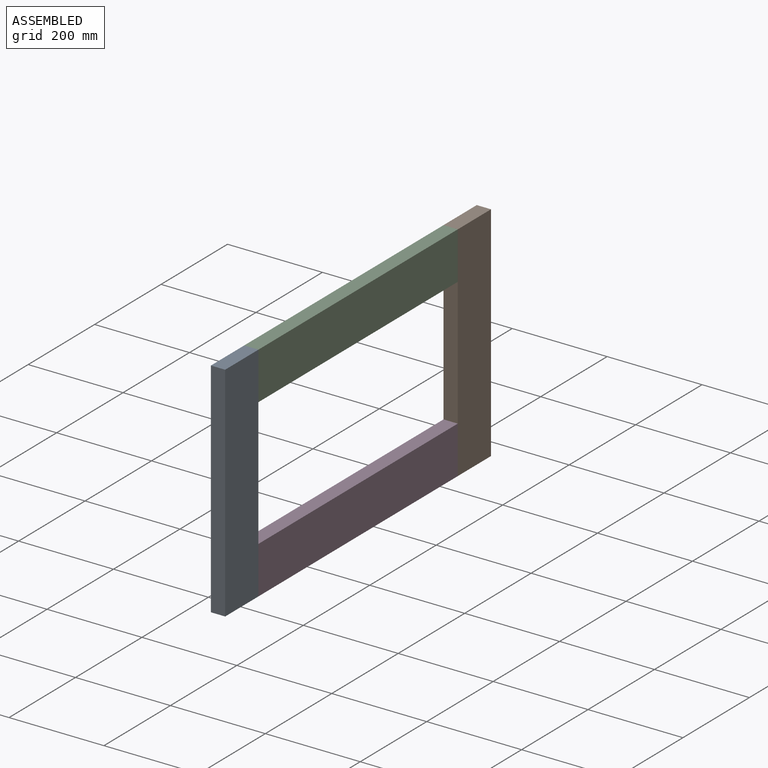
[diagram: assembled view]
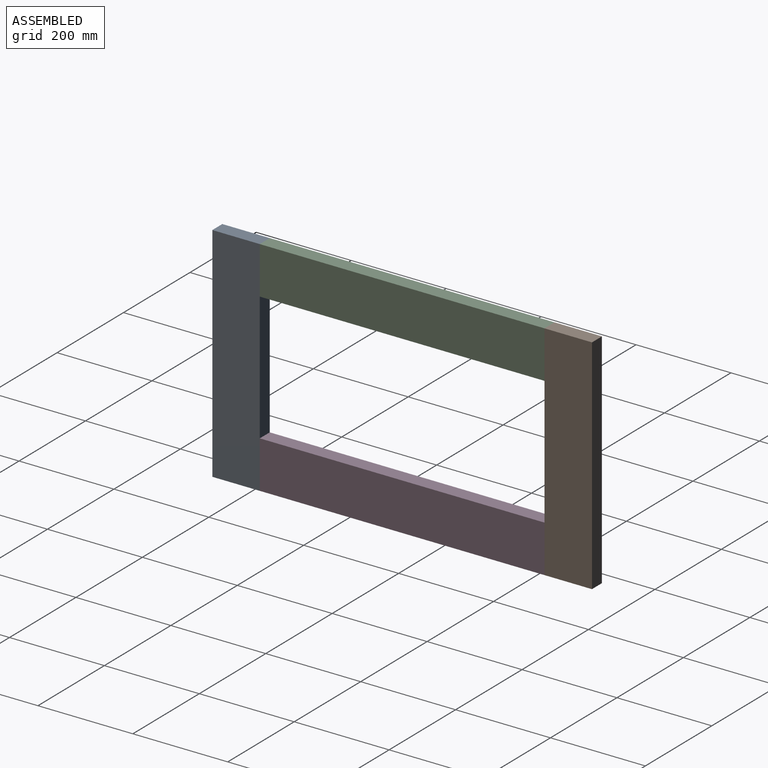
[diagram: assembled view, second angle]
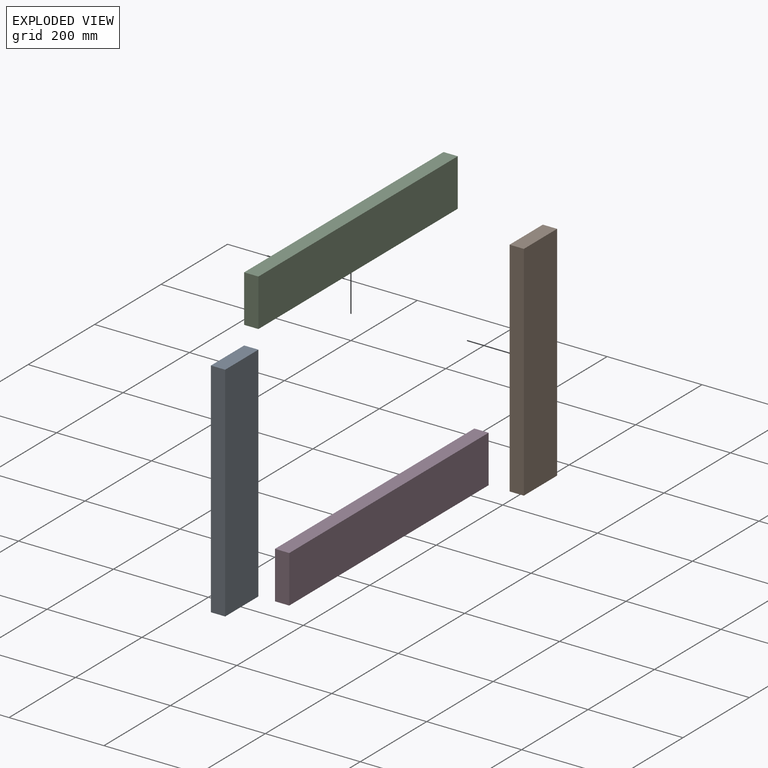
[diagram: exploded view]
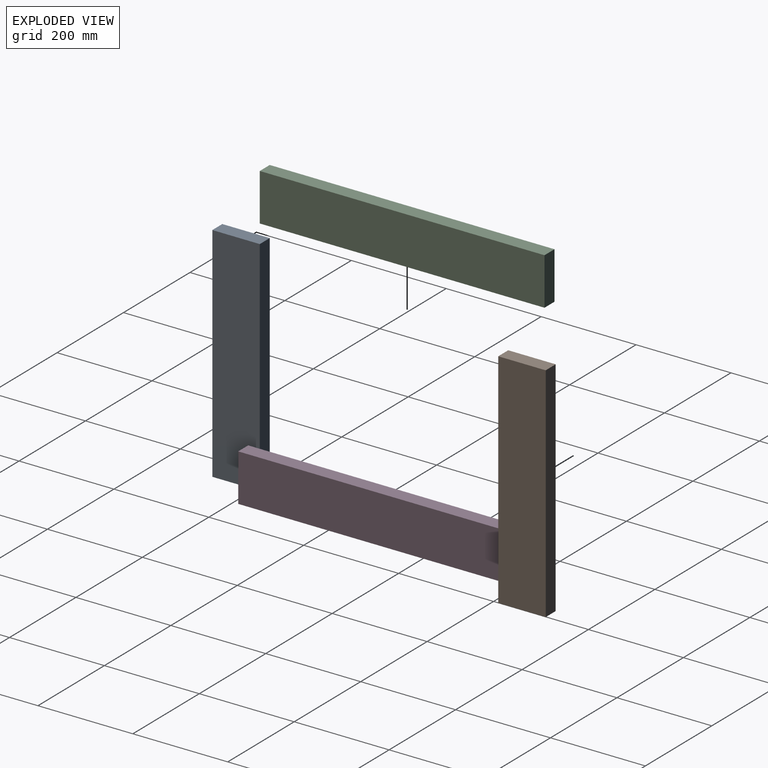
[diagram: exploded view, second angle]
ASSEMBLY  parts=4 mates=9
PART A: 6 faces, bbox 30x100x470 mm
  f0: plane 100x30mm, normal (0,0,1), area 3000mm2, adj f1,f3,f4,f5
  f1: plane 470x30mm, normal (0,-1,0), area 14100mm2, adj f0,f2,f4,f5
  f2: plane 100x30mm, normal (0,0,-1), area 3000mm2, adj f1,f3,f4,f5
  f3: plane 470x30mm, normal (0,1,0), area 14100mm2, adj f0,f2,f4,f5
  f4: plane 470x100mm, normal (1,0,0), area 47000mm2, adj f0,f1,f2,f3
  f5: plane 470x100mm, normal (-1,0,0), area 47000mm2, adj f0,f1,f2,f3
PART B: same geometry as A
PART C: 6 faces, bbox 30x600x100 mm
  f0: plane 600x30mm, normal (0,0,1), area 18000mm2, adj f1,f3,f4,f5
  f1: plane 100x30mm, normal (0,-1,0), area 3000mm2, adj f0,f2,f4,f5
  f2: plane 600x30mm, normal (0,0,-1), area 18000mm2, adj f1,f3,f4,f5
  f3: plane 100x30mm, normal (0,1,0), area 3000mm2, adj f0,f2,f4,f5
  f4: plane 600x100mm, normal (1,0,0), area 60000mm2, adj f0,f1,f2,f3
  f5: plane 600x100mm, normal (-1,0,0), area 60000mm2, adj f0,f1,f2,f3
PART D: same geometry as C
PLACE A t=(-743.97,465.3,-247.61)mm
PLACE B t=(-743.97,1165.3,-247.61)mm
PLACE C t=(-743.97,-242.56,-641.31)mm
PLACE D t=(-743.97,-242.56,-1011.31)mm
MATE planar C.f0 <-> A.f0  axis (0,0,1) through (-728.97,-672.34,-327.21)mm
MATE planar B.f4 <-> C.f4  axis (1,0,0) through (-713.97,-322.34,-562.21)mm
MATE planar B.f0 <-> C.f0  axis (0,0,1) through (-728.97,-322.34,-327.21)mm
MATE planar D.f4 <-> A.f4  axis (1,0,0) through (-713.97,-672.34,-747.21)mm
MATE planar C.f4 <-> A.f4  axis (1,0,0) through (-713.97,-672.34,-377.21)mm
MATE planar C.f1 <-> A.f3  axis (0,-1,0) through (-728.97,-972.34,-377.21)mm
MATE planar D.f2 <-> A.f2  axis (0,0,-1) through (-728.97,-672.34,-797.21)mm
MATE planar D.f1 <-> A.f3  axis (0,-1,0) through (-728.97,-972.34,-747.21)mm
MATE planar B.f1 <-> C.f3  axis (0,-1,0) through (-728.97,-372.34,-562.21)mm
